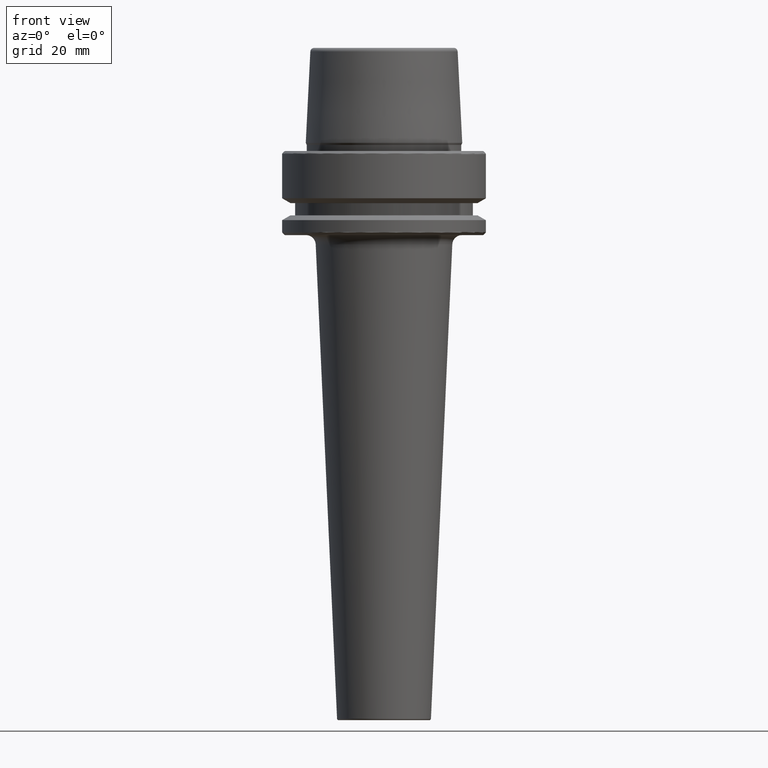
[diagram: clean part render]
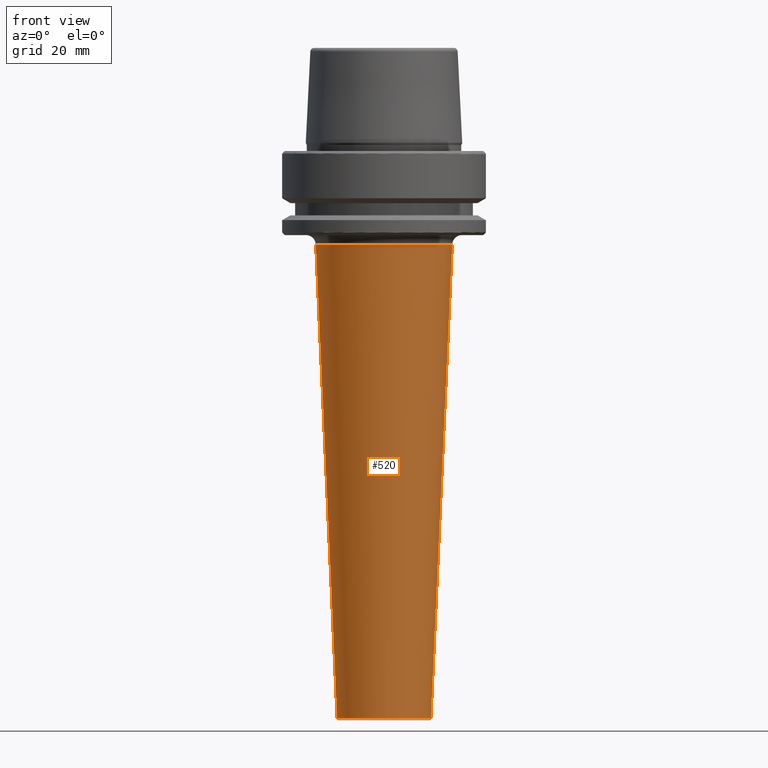
[diagram: same view with one face highlighted and labeled with its STEP entity id]
A machine part, front view. The second image highlights one B-rep face of the part: STEP entity #520.
In plain terms, the highlighted conical surface has half-angle 2.577 deg.
Its self-contained STEP definition (entity closure, byte-faithful):
#1 = ORIENTED_EDGE ( 'NONE', *, *, #82, .T. ) ;
#21 = ORIENTED_EDGE ( 'NONE', *, *, #1045, .F. ) ;
#64 = CARTESIAN_POINT ( 'NONE',  ( 14.52148852360192600, 0.0000000000000000000, -175.5224772532907300 ) ) ;
#82 = EDGE_CURVE ( 'NONE', #765, #1213, #254, .T. ) ;
#101 = EDGE_CURVE ( 'NONE', #1213, #1197, #574, .T. ) ;
#174 = CARTESIAN_POINT ( 'NONE',  ( 0.0000000000000000000, 0.0000000000000000000, -175.5224772532907300 ) ) ;
#188 = CARTESIAN_POINT ( 'NONE',  ( 21.24999999999999600, 0.0000000000000000000, -26.00000000000001100 ) ) ;
#230 = CARTESIAN_POINT ( 'NONE',  ( -21.24999999999999600, 2.602374448188125100E-015, -26.00000000000001100 ) ) ;
#246 = DIRECTION ( 'NONE',  ( 1.000000000000000000, 0.0000000000000000000, 0.0000000000000000000 ) ) ;
#254 = CIRCLE ( 'NONE', #258, 14.52148852360192600 ) ;
#256 = CARTESIAN_POINT ( 'NONE',  ( 21.12106885838849700, 0.0000000000000000000, -28.86513648025556500 ) ) ;
#258 = AXIS2_PLACEMENT_3D ( 'NONE', #174, #957, #246 ) ;
#376 = DIRECTION ( 'NONE',  ( 0.0000000000000000000, 0.0000000000000000000, 1.000000000000000000 ) ) ;
#497 = DIRECTION ( 'NONE',  ( -0.0000000000000000000, -0.0000000000000000000, -1.000000000000000000 ) ) ;
#516 = ORIENTED_EDGE ( 'NONE', *, *, #1041, .T. ) ;
#520 = ADVANCED_FACE ( 'NONE', ( #718 ), #938, .T. ) ;
#574 = LINE ( 'NONE', #188, #714 ) ;
#580 = CARTESIAN_POINT ( 'NONE',  ( -14.52148852360192600, 2.182477190564021800E-015, -175.5224772532907300 ) ) ;
#586 = DIRECTION ( 'NONE',  ( -0.04495450658148162500, 5.505339259226009500E-018, 0.9989890351440378100 ) ) ;
#593 = DIRECTION ( 'NONE',  ( 1.000000000000000000, 0.0000000000000000000, 0.0000000000000000000 ) ) ;
#658 = CIRCLE ( 'NONE', #1157, 21.12106885838849700 ) ;
#689 = DIRECTION ( 'NONE',  ( 0.04495450658148162500, 0.0000000000000000000, 0.9989890351440378100 ) ) ;
#714 = VECTOR ( 'NONE', #689, 1000.000000000000000 ) ;
#718 = FACE_OUTER_BOUND ( 'NONE', #1112, .T. ) ;
#747 = AXIS2_PLACEMENT_3D ( 'NONE', #1062, #376, #879 ) ;
#765 = VERTEX_POINT ( 'NONE', #580 ) ;
#785 = CARTESIAN_POINT ( 'NONE',  ( 0.0000000000000000000, 0.0000000000000000000, -28.86513648025556500 ) ) ;
#879 = DIRECTION ( 'NONE',  ( 1.000000000000000000, 0.0000000000000000000, 0.0000000000000000000 ) ) ;
#938 = CONICAL_SURFACE ( 'NONE', #747, 21.24999999999999600, 0.04496966185232750800 ) ;
#957 = DIRECTION ( 'NONE',  ( 0.0000000000000000000, 0.0000000000000000000, 1.000000000000000000 ) ) ;
#988 = LINE ( 'NONE', #230, #1168 ) ;
#1041 = EDGE_CURVE ( 'NONE', #1197, #1053, #658, .T. ) ;
#1045 = EDGE_CURVE ( 'NONE', #765, #1053, #988, .T. ) ;
#1053 = VERTEX_POINT ( 'NONE', #1073 ) ;
#1062 = CARTESIAN_POINT ( 'NONE',  ( 0.0000000000000000000, 0.0000000000000000000, -26.00000000000001100 ) ) ;
#1073 = CARTESIAN_POINT ( 'NONE',  ( -21.12106885838849700, 2.586584937199631200E-015, -28.86513648025556500 ) ) ;
#1112 = EDGE_LOOP ( 'NONE', ( #21, #1, #1135, #516 ) ) ;
#1135 = ORIENTED_EDGE ( 'NONE', *, *, #101, .T. ) ;
#1157 = AXIS2_PLACEMENT_3D ( 'NONE', #785, #497, #593 ) ;
#1168 = VECTOR ( 'NONE', #586, 1000.000000000000000 ) ;
#1197 = VERTEX_POINT ( 'NONE', #256 ) ;
#1213 = VERTEX_POINT ( 'NONE', #64 ) ;